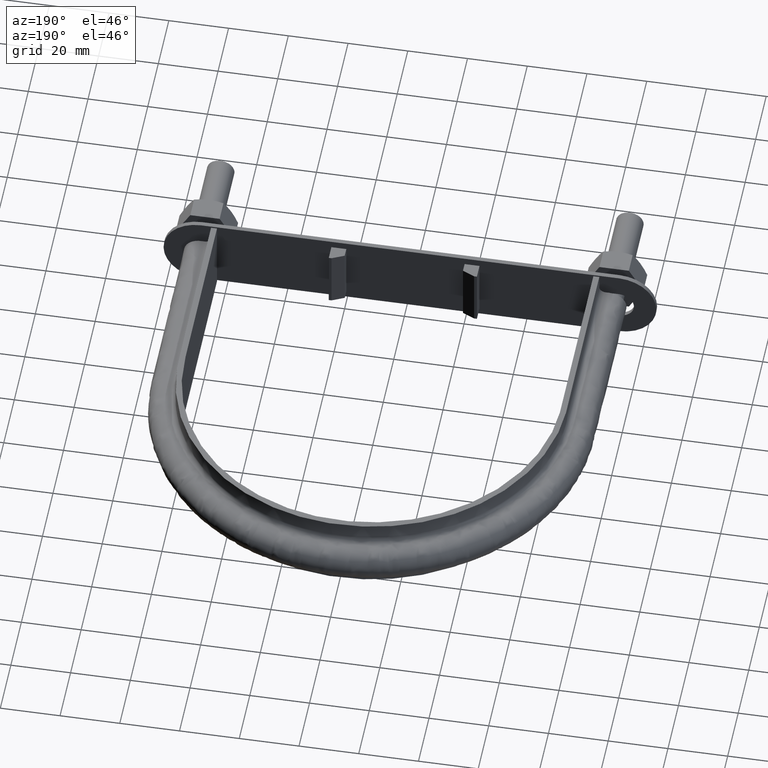
[diagram: clean part render]
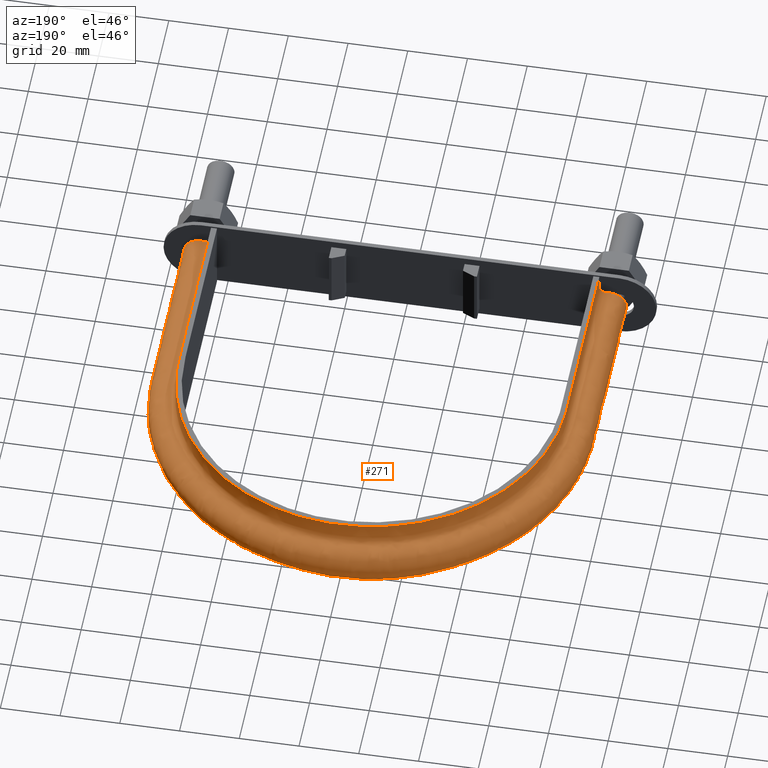
[diagram: same view with one face highlighted and labeled with its STEP entity id]
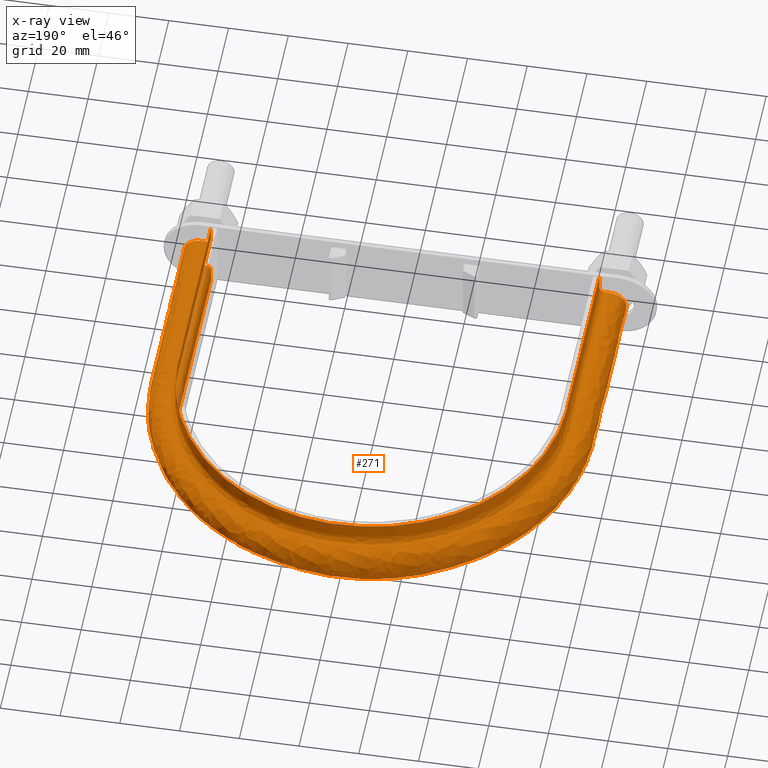
[diagram: x-ray of the same camera — body ghosted, the highlighted face saturated]
A machine part, auxiliary view. The second image highlights one B-rep face of the part: STEP entity #271.
The next image is the same camera in x-ray: the body ghosted, the highlighted face saturated — about 1% of this face is hidden behind the body in this view.
In plain terms, the highlighted face is a freeform B-spline surface patch.
Its self-contained STEP definition (entity closure, byte-faithful):
#271 = ADVANCED_FACE( '', ( #388 ), #389, .F. );
#388 = FACE_OUTER_BOUND( '', #641, .T. );
#389 = B_SPLINE_SURFACE_WITH_KNOTS( '', 3, 3, ( ( #642, #643, #644, #645, #646, #647, #648, #649, #650, #651, #652, #653, #654, #655, #656, #657 ), ( #658, #659, #660, #661, #662, #663, #664, #665, #666, #667, #668, #669, #670, #671, #672, #673 ), ( #674, #675, #676, #677, #678, #679, #680, #681, #682, #683, #684, #685, #686, #687, #688, #689 ), ( #690, #691, #692, #693, #694, #695, #696, #697, #698, #699, #700, #701, #702, #703, #704, #705 ), ( #706, #707, #708, #709, #710, #711, #712, #713, #714, #715, #716, #717, #718, #719, #720, #721 ), ( #722, #723, #724, #725, #726, #727, #728, #729, #730, #731, #732, #733, #734, #735, #736, #737 ), ( #738, #739, #740, #741, #742, #743, #744, #745, #746, #747, #748, #749, #750, #751, #752, #753 ), ( #754, #755, #756, #757, #758, #759, #760, #761, #762, #763, #764, #765, #766, #767, #768, #769 ), ( #770, #771, #772, #773, #774, #775, #776, #777, #778, #779, #780, #781, #782, #783, #784, #785 ), ( #786, #787, #788, #789, #790, #791, #792, #793, #794, #795, #796, #797, #798, #799, #800, #801 ), ( #802, #803, #804, #805, #806, #807, #808, #809, #810, #811, #812, #813, #814, #815, #816, #817 ), ( #818, #819, #820, #821, #822, #823, #824, #825, #826, #827, #828, #829, #830, #831, #832, #833 ), ( #834, #835, #836, #837, #838, #839, #840, #841, #842, #843, #844, #845, #846, #847, #848, #849 ), ( #850, #851, #852, #853, #854, #855, #856, #857, #858, #859, #860, #861, #862, #863, #864, #865 ), ( #866, #867, #868, #869, #870, #871, #872, #873, #874, #875, #876, #877, #878, #879, #880, #881 ), ( #882, #883, #884, #885, #886, #887, #888, #889, #890, #891, #892, #893, #894, #895, #896, #897 ), ( #898, #899, #900, #901, #902, #903, #904, #905, #906, #907, #908, #909, #910, #911, #912, #913 ), ( #914, #915, #916, #917, #918, #919, #920, #921, #922, #923, #924, #925, #926, #927, #928, #929 ), ( #930, #931, #932, #933, #934, #935, #936, #937, #938, #939, #940, #941, #942, #943, #944, #945 ), ( #946, #947, #948, #949, #950, #951, #952, #953, #954, #955, #956, #957, #958, #959, #960, #961 ), ( #962, #963, #964, #965, #966, #967, #968, #969, #970, #971, #972, #973, #974, #975, #976, #977 ), ( #978, #979, #980, #981, #982, #983, #984, #985, #986, #987, #988, #989, #990, #991, #992, #993 ), ( #994, #995, #996, #997, #998, #999, #1000, #1001, #1002, #1003, #1004, #1005, #1006, #1007, #1008, #1009 ), ( #1010, #1011, #1012, #1013, #1014, #1015, #1016, #1017, #1018, #1019, #1020, #1021, #1022, #1023, #1024, #1025 ), ( #1026, #1027, #1028, #1029, #1030, #1031, #1032, #1033, #1034, #1035, #1036, #1037, #1038, #1039, #1040, #1041 ), ( #1042, #1043, #1044, #1045, #1046, #1047, #1048, #1049, #1050, #1051, #1052, #1053, #1054, #1055, #1056, #1057 ), ( #1058, #1059, #1060, #1061, #1062, #1063, #1064, #1065, #1066, #1067, #1068, #1069, #1070, #1071, #1072, #1073 ), ( #1074, #1075, #1076, #1077, #1078, #1079, #1080, #1081, #1082, #1083, #1084, #1085, #1086, #1087, #1088, #1089 ), ( #1090, #1091, #1092, #1093, #1094, #1095, #1096, #1097, #1098, #1099, #1100, #1101, #1102, #1103, #1104, #1105 ), ( #1106, #1107, #1108, #1109, #1110, #1111, #1112, #1113, #1114, #1115, #1116, #1117, #1118, #1119, #1120, #1121 ), ( #1122, #1123, #1124, #1125, #1126, #1127, #1128, #1129, #1130, #1131, #1132, #1133, #1134, #1135, #1136, #1137 ) ), .UNSPECIFIED., .F., .F., .F., ( 4, 3, 1, 1, 1, 3, 3, 1, 1, 1, 3, 3, 1, 1, 1, 3, 4 ), ( 4, 3, 1, 1, 1, 1, 1, 1, 3, 4 ), ( 0.105263157894737, 0.157894736842105, 0.210526315789474, 0.263157894736842, 0.315789473684211, 0.368421052631579, 0.421052631578947, 0.473684210526316, 0.526315789473684, 0.578947368421053, 0.631578947368421, 0.684210526315789, 0.736842105263158, 0.789473684210526, 0.842105263157895, 0.894736842105263, 0.947368421052632 ), ( 0.000000000000000, 1.00000000000000, 2.00000000000000, 3.00000000000000, 4.00000000000000, 5.00000000000000, 6.00000000000000, 7.00000000000000, 8.00000000000000, 9.00000000000000 ), .UNSPECIFIED. );
#641 = EDGE_LOOP( '', ( #1581, #1582, #1583, #1584 ) );
#642 = CARTESIAN_POINT( '', ( -65.0000000000000, 34.4100000000000, 12.5000000000000 ) );
#643 = CARTESIAN_POINT( '', ( -65.0000000000000, 56.2766666666667, 12.5000000000000 ) );
#644 = CARTESIAN_POINT( '', ( -65.0000000000000, 78.1433333333334, 12.5000000000000 ) );
#645 = CARTESIAN_POINT( '', ( -65.0000000000000, 100.010000000000, 12.5000000000000 ) );
#646 = CARTESIAN_POINT( '', ( -65.0000000000000, 109.722642194517, 12.5000000000000 ) );
#647 = CARTESIAN_POINT( '', ( -60.5621560385809, 129.179409743994, 12.5000000000000 ) );
#648 = CARTESIAN_POINT( '', ( -41.9103123469103, 152.562760860094, 12.5000000000000 ) );
#649 = CARTESIAN_POINT( '', ( -14.9576172986841, 165.543824978164, 12.5000000000000 ) );
#650 = CARTESIAN_POINT( '', ( 14.9576172986842, 165.543824978164, 12.5000000000000 ) );
#651 = CARTESIAN_POINT( '', ( 41.9103123469103, 152.562760860094, 12.5000000000000 ) );
#652 = CARTESIAN_POINT( '', ( 60.5621560385810, 129.179409743994, 12.5000000000000 ) );
#653 = CARTESIAN_POINT( '', ( 65.0000000000000, 109.722642194517, 12.5000000000000 ) );
#654 = CARTESIAN_POINT( '', ( 65.0000000000001, 100.010000000000, 12.5000000000000 ) );
#655 = CARTESIAN_POINT( '', ( 65.0000000000000, 78.1433333333333, 12.5000000000000 ) );
#656 = CARTESIAN_POINT( '', ( 65.0000000000000, 56.2766666666666, 12.5000000000000 ) );
#657 = CARTESIAN_POINT( '', ( 65.0000000000000, 34.4100000000000, 12.5000000000000 ) );
#658 = CARTESIAN_POINT( '', ( -65.0000000000000, 34.4100000000000, 10.8666666666667 ) );
#659 = CARTESIAN_POINT( '', ( -65.0000000000000, 56.2766666666667, 10.8666666666667 ) );
#660 = CARTESIAN_POINT( '', ( -65.0000000000000, 78.1433333333334, 10.8666666666667 ) );
#661 = CARTESIAN_POINT( '', ( -65.0000000000000, 100.010000000000, 10.8666666666667 ) );
#662 = CARTESIAN_POINT( '', ( -65.0000000000000, 109.722642194517, 10.8666666666667 ) );
#663 = CARTESIAN_POINT( '', ( -60.5621560385809, 129.179409743994, 10.8666666666667 ) );
#664 = CARTESIAN_POINT( '', ( -41.9103123469103, 152.562760860094, 10.8666666666667 ) );
#665 = CARTESIAN_POINT( '', ( -14.9576172986841, 165.543824978164, 10.8666666666667 ) );
#666 = CARTESIAN_POINT( '', ( 14.9576172986842, 165.543824978164, 10.8666666666667 ) );
#667 = CARTESIAN_POINT( '', ( 41.9103123469103, 152.562760860094, 10.8666666666667 ) );
#668 = CARTESIAN_POINT( '', ( 60.5621560385810, 129.179409743994, 10.8666666666667 ) );
#669 = CARTESIAN_POINT( '', ( 65.0000000000000, 109.722642194517, 10.8666666666667 ) );
#670 = CARTESIAN_POINT( '', ( 65.0000000000001, 100.010000000000, 10.8666666666667 ) );
#671 = CARTESIAN_POINT( '', ( 65.0000000000000, 78.1433333333333, 10.8666666666667 ) );
#672 = CARTESIAN_POINT( '', ( 65.0000000000000, 56.2766666666666, 10.8666666666667 ) );
#673 = CARTESIAN_POINT( '', ( 65.0000000000000, 34.4100000000000, 10.8666666666667 ) );
#674 = CARTESIAN_POINT( '', ( -65.0000000000000, 34.4100000000000, 9.23333333333333 ) );
#675 = CARTESIAN_POINT( '', ( -65.0000000000000, 56.2766666666667, 9.23333333333333 ) );
#676 = CARTESIAN_POINT( '', ( -65.0000000000000, 78.1433333333334, 9.23333333333333 ) );
#677 = CARTESIAN_POINT( '', ( -65.0000000000000, 100.010000000000, 9.23333333333333 ) );
#678 = CARTESIAN_POINT( '', ( -65.0000000000000, 109.722642194517, 9.23333333333333 ) );
#679 = CARTESIAN_POINT( '', ( -60.5621560385809, 129.179409743994, 9.23333333333333 ) );
#680 = CARTESIAN_POINT( '', ( -41.9103123469103, 152.562760860094, 9.23333333333332 ) );
#681 = CARTESIAN_POINT( '', ( -14.9576172986841, 165.543824978164, 9.23333333333334 ) );
#682 = CARTESIAN_POINT( '', ( 14.9576172986842, 165.543824978164, 9.23333333333333 ) );
#683 = CARTESIAN_POINT( '', ( 41.9103123469103, 152.562760860094, 9.23333333333332 ) );
#684 = CARTESIAN_POINT( '', ( 60.5621560385810, 129.179409743994, 9.23333333333333 ) );
#685 = CARTESIAN_POINT( '', ( 65.0000000000000, 109.722642194517, 9.23333333333333 ) );
#686 = CARTESIAN_POINT( '', ( 65.0000000000001, 100.010000000000, 9.23333333333333 ) );
#687 = CARTESIAN_POINT( '', ( 65.0000000000000, 78.1433333333333, 9.23333333333333 ) );
#688 = CARTESIAN_POINT( '', ( 65.0000000000000, 56.2766666666666, 9.23333333333333 ) );
#689 = CARTESIAN_POINT( '', ( 65.0000000000000, 34.4100000000000, 9.23333333333333 ) );
#690 = CARTESIAN_POINT( '', ( -65.0000000000000, 34.4100000000000, 7.60000000000000 ) );
#691 = CARTESIAN_POINT( '', ( -65.0000000000000, 56.2766666666667, 7.60000000000000 ) );
#692 = CARTESIAN_POINT( '', ( -65.0000000000000, 78.1433333333334, 7.60000000000000 ) );
#693 = CARTESIAN_POINT( '', ( -65.0000000000000, 100.010000000000, 7.60000000000000 ) );
#694 = CARTESIAN_POINT( '', ( -65.0000000000000, 109.722642194517, 7.60000000000000 ) );
#695 = CARTESIAN_POINT( '', ( -60.5621560385809, 129.179409743994, 7.60000000000000 ) );
#696 = CARTESIAN_POINT( '', ( -41.9103123469103, 152.562760860094, 7.59999999999999 ) );
#697 = CARTESIAN_POINT( '', ( -14.9576172986841, 165.543824978164, 7.60000000000001 ) );
#698 = CARTESIAN_POINT( '', ( 14.9576172986842, 165.543824978164, 7.59999999999999 ) );
#699 = CARTESIAN_POINT( '', ( 41.9103123469103, 152.562760860094, 7.59999999999999 ) );
#700 = CARTESIAN_POINT( '', ( 60.5621560385810, 129.179409743994, 7.59999999999999 ) );
#701 = CARTESIAN_POINT( '', ( 65.0000000000000, 109.722642194517, 7.60000000000000 ) );
#702 = CARTESIAN_POINT( '', ( 65.0000000000001, 100.010000000000, 7.60000000000000 ) );
#703 = CARTESIAN_POINT( '', ( 65.0000000000000, 78.1433333333333, 7.60000000000000 ) );
#704 = CARTESIAN_POINT( '', ( 65.0000000000000, 56.2766666666666, 7.60000000000000 ) );
#705 = CARTESIAN_POINT( '', ( 65.0000000000000, 34.4100000000000, 7.60000000000000 ) );
#706 = CARTESIAN_POINT( '', ( -65.0000000000000, 34.4100000000000, 7.33823584172333 ) );
#707 = CARTESIAN_POINT( '', ( -65.0000000000000, 56.2766666666667, 7.33823584172333 ) );
#708 = CARTESIAN_POINT( '', ( -65.0000000000000, 78.1433333333334, 7.33823584172333 ) );
#709 = CARTESIAN_POINT( '', ( -65.0000000000000, 100.010000000000, 7.33823584172333 ) );
#710 = CARTESIAN_POINT( '', ( -65.0000000000000, 109.722642194517, 7.33823584172333 ) );
#711 = CARTESIAN_POINT( '', ( -60.5621560385809, 129.179409743994, 7.33823584172333 ) );
#712 = CARTESIAN_POINT( '', ( -41.9103123469103, 152.562760860094, 7.33823584172332 ) );
#713 = CARTESIAN_POINT( '', ( -14.9576172986841, 165.543824978164, 7.33823584172334 ) );
#714 = CARTESIAN_POINT( '', ( 14.9576172986842, 165.543824978164, 7.33823584172333 ) );
#715 = CARTESIAN_POINT( '', ( 41.9103123469103, 152.562760860094, 7.33823584172333 ) );
#716 = CARTESIAN_POINT( '', ( 60.5621560385810, 129.179409743994, 7.33823584172333 ) );
#717 = CARTESIAN_POINT( '', ( 65.0000000000000, 109.722642194517, 7.33823584172333 ) );
#718 = CARTESIAN_POINT( '', ( 65.0000000000001, 100.010000000000, 7.33823584172333 ) );
#719 = CARTESIAN_POINT( '', ( 65.0000000000000, 78.1433333333333, 7.33823584172333 ) );
#720 = CARTESIAN_POINT( '', ( 65.0000000000000, 56.2766666666666, 7.33823584172333 ) );
#721 = CARTESIAN_POINT( '', ( 65.0000000000000, 34.4100000000000, 7.33823584172333 ) );
#722 = CARTESIAN_POINT( '', ( -65.1041362568359, 34.4100000000000, 6.81470752517001 ) );
#723 = CARTESIAN_POINT( '', ( -65.1041362568359, 56.2766666666667, 6.81470752517001 ) );
#724 = CARTESIAN_POINT( '', ( -65.1041362568359, 78.1433333333334, 6.81470752517001 ) );
#725 = CARTESIAN_POINT( '', ( -65.1041362568359, 100.010000000000, 6.81470752517001 ) );
#726 = CARTESIAN_POINT( '', ( -65.1041362568359, 109.738487808563, 6.81470752517001 ) );
#727 = CARTESIAN_POINT( '', ( -60.6591824422081, 129.226009860854, 6.81470752517001 ) );
#728 = CARTESIAN_POINT( '', ( -41.9774567015354, 152.646990200976, 6.81470752517000 ) );
#729 = CARTESIAN_POINT( '', ( -14.9815808414021, 165.648809522138, 6.81470752517001 ) );
#730 = CARTESIAN_POINT( '', ( 14.9815808414021, 165.648809522138, 6.81470752517000 ) );
#731 = CARTESIAN_POINT( '', ( 41.9774567015354, 152.646990200976, 6.81470752517000 ) );
#732 = CARTESIAN_POINT( '', ( 60.6591824422082, 129.226009860854, 6.81470752517001 ) );
#733 = CARTESIAN_POINT( '', ( 65.1041362568359, 109.738487808563, 6.81470752517001 ) );
#734 = CARTESIAN_POINT( '', ( 65.1041362568360, 100.010000000000, 6.81470752517001 ) );
#735 = CARTESIAN_POINT( '', ( 65.1041362568359, 78.1433333333333, 6.81470752517001 ) );
#736 = CARTESIAN_POINT( '', ( 65.1041362568359, 56.2766666666666, 6.81470752517001 ) );
#737 = CARTESIAN_POINT( '', ( 65.1041362568359, 34.4100000000000, 6.81470752517001 ) );
#738 = CARTESIAN_POINT( '', ( -65.5489687109389, 34.4100000000000, 6.14896871093887 ) );
#739 = CARTESIAN_POINT( '', ( -65.5489687109389, 56.2766666666667, 6.14896871093887 ) );
#740 = CARTESIAN_POINT( '', ( -65.5489687109389, 78.1433333333334, 6.14896871093887 ) );
#741 = CARTESIAN_POINT( '', ( -65.5489687109389, 100.010000000000, 6.14896871093887 ) );
#742 = CARTESIAN_POINT( '', ( -65.5489687109389, 109.806174545127, 6.14896871093887 ) );
#743 = CARTESIAN_POINT( '', ( -61.0736441729221, 129.425068718682, 6.14896871093887 ) );
#744 = CARTESIAN_POINT( '', ( -42.2642731183584, 153.006787504534, 6.14896871093886 ) );
#745 = CARTESIAN_POINT( '', ( -15.0839444354099, 166.097265552326, 6.14896871093888 ) );
#746 = CARTESIAN_POINT( '', ( 15.0839444354099, 166.097265552326, 6.14896871093887 ) );
#747 = CARTESIAN_POINT( '', ( 42.2642731183585, 153.006787504534, 6.14896871093887 ) );
#748 = CARTESIAN_POINT( '', ( 61.0736441729222, 129.425068718682, 6.14896871093887 ) );
#749 = CARTESIAN_POINT( '', ( 65.5489687109389, 109.806174545127, 6.14896871093887 ) );
#750 = CARTESIAN_POINT( '', ( 65.5489687109389, 100.010000000000, 6.14896871093887 ) );
#751 = CARTESIAN_POINT( '', ( 65.5489687109389, 78.1433333333333, 6.14896871093887 ) );
#752 = CARTESIAN_POINT( '', ( 65.5489687109389, 56.2766666666666, 6.14896871093887 ) );
#753 = CARTESIAN_POINT( '', ( 65.5489687109389, 34.4100000000000, 6.14896871093887 ) );
#754 = CARTESIAN_POINT( '', ( -66.2147075251700, 34.4100000000000, 5.70413625683590 ) );
#755 = CARTESIAN_POINT( '', ( -66.2147075251700, 56.2766666666667, 5.70413625683590 ) );
#756 = CARTESIAN_POINT( '', ( -66.2147075251700, 78.1433333333334, 5.70413625683590 ) );
#757 = CARTESIAN_POINT( '', ( -66.2147075251700, 100.010000000000, 5.70413625683590 ) );
#758 = CARTESIAN_POINT( '', ( -66.2147075251700, 109.907474905125, 5.70413625683590 ) );
#759 = CARTESIAN_POINT( '', ( -61.6939299875130, 129.722981352417, 5.70413625683591 ) );
#760 = CARTESIAN_POINT( '', ( -42.6935242206028, 153.545262222430, 5.70413625683590 ) );
#761 = CARTESIAN_POINT( '', ( -15.2371423800891, 166.768427431407, 5.70413625683591 ) );
#762 = CARTESIAN_POINT( '', ( 15.2371423800891, 166.768427431407, 5.70413625683590 ) );
#763 = CARTESIAN_POINT( '', ( 42.6935242206029, 153.545262222430, 5.70413625683590 ) );
#764 = CARTESIAN_POINT( '', ( 61.6939299875130, 129.722981352417, 5.70413625683590 ) );
#765 = CARTESIAN_POINT( '', ( 66.2147075251701, 109.907474905125, 5.70413625683590 ) );
#766 = CARTESIAN_POINT( '', ( 66.2147075251701, 100.010000000000, 5.70413625683590 ) );
#767 = CARTESIAN_POINT( '', ( 66.2147075251700, 78.1433333333333, 5.70413625683590 ) );
#768 = CARTESIAN_POINT( '', ( 66.2147075251700, 56.2766666666666, 5.70413625683590 ) );
#769 = CARTESIAN_POINT( '', ( 66.2147075251700, 34.4100000000000, 5.70413625683590 ) );
#770 = CARTESIAN_POINT( '', ( -66.7382358417234, 34.4100000000000, 5.59999999999999 ) );
#771 = CARTESIAN_POINT( '', ( -66.7382358417234, 56.2766666666667, 5.59999999999999 ) );
#772 = CARTESIAN_POINT( '', ( -66.7382358417233, 78.1433333333334, 5.59999999999999 ) );
#773 = CARTESIAN_POINT( '', ( -66.7382358417233, 100.010000000000, 5.59999999999999 ) );
#774 = CARTESIAN_POINT( '', ( -66.7382358417233, 109.987136186400, 5.59999999999999 ) );
#775 = CARTESIAN_POINT( '', ( -62.1817146582471, 129.957255960244, 5.60000000000000 ) );
#776 = CARTESIAN_POINT( '', ( -43.0310816862829, 153.968711714244, 5.59999999999999 ) );
#777 = CARTESIAN_POINT( '', ( -15.3576152447664, 167.296220375395, 5.60000000000000 ) );
#778 = CARTESIAN_POINT( '', ( 15.3576152447665, 167.296220375395, 5.59999999999999 ) );
#779 = CARTESIAN_POINT( '', ( 43.0310816862829, 153.968711714244, 5.59999999999999 ) );
#780 = CARTESIAN_POINT( '', ( 62.1817146582472, 129.957255960244, 5.59999999999999 ) );
#781 = CARTESIAN_POINT( '', ( 66.7382358417234, 109.987136186400, 5.59999999999999 ) );
#782 = CARTESIAN_POINT( '', ( 66.7382358417234, 100.010000000000, 5.59999999999999 ) );
#783 = CARTESIAN_POINT( '', ( 66.7382358417234, 78.1433333333333, 5.59999999999999 ) );
#784 = CARTESIAN_POINT( '', ( 66.7382358417234, 56.2766666666666, 5.59999999999999 ) );
#785 = CARTESIAN_POINT( '', ( 66.7382358417234, 34.4100000000000, 5.59999999999999 ) );
#786 = CARTESIAN_POINT( '', ( -67.0000000000000, 34.4100000000000, 5.59999999999999 ) );
#787 = CARTESIAN_POINT( '', ( -67.0000000000000, 56.2766666666667, 5.59999999999999 ) );
#788 = CARTESIAN_POINT( '', ( -67.0000000000000, 78.1433333333334, 5.59999999999999 ) );
#789 = CARTESIAN_POINT( '', ( -67.0000000000000, 100.010000000000, 5.59999999999999 ) );
#790 = CARTESIAN_POINT( '', ( -67.0000000000000, 110.026966827037, 5.59999999999999 ) );
#791 = CARTESIAN_POINT( '', ( -62.4256069936142, 130.074393264158, 5.60000000000000 ) );
#792 = CARTESIAN_POINT( '', ( -43.1998604191229, 154.180436460150, 5.59999999999999 ) );
#793 = CARTESIAN_POINT( '', ( -15.4178516771051, 167.560116847389, 5.60000000000000 ) );
#794 = CARTESIAN_POINT( '', ( 15.4178516771052, 167.560116847389, 5.59999999999999 ) );
#795 = CARTESIAN_POINT( '', ( 43.1998604191230, 154.180436460150, 5.59999999999999 ) );
#796 = CARTESIAN_POINT( '', ( 62.4256069936142, 130.074393264158, 5.59999999999999 ) );
#797 = CARTESIAN_POINT( '', ( 67.0000000000000, 110.026966827037, 5.59999999999999 ) );
#798 = CARTESIAN_POINT( '', ( 67.0000000000001, 100.010000000000, 5.59999999999999 ) );
#799 = CARTESIAN_POINT( '', ( 67.0000000000000, 78.1433333333333, 5.59999999999999 ) );
#800 = CARTESIAN_POINT( '', ( 67.0000000000000, 56.2766666666666, 5.59999999999999 ) );
#801 = CARTESIAN_POINT( '', ( 67.0000000000000, 34.4100000000000, 5.59999999999999 ) );
#802 = CARTESIAN_POINT( '', ( -67.5000000000000, 34.4100000000000, 5.60000000000000 ) );
#803 = CARTESIAN_POINT( '', ( -67.5000000000000, 56.2766666666667, 5.60000000000000 ) );
#804 = CARTESIAN_POINT( '', ( -67.5000000000000, 78.1433333333334, 5.60000000000000 ) );
#805 = CARTESIAN_POINT( '', ( -67.5000000000000, 100.010000000000, 5.60000000000000 ) );
#806 = CARTESIAN_POINT( '', ( -67.5000000000000, 110.103047985167, 5.60000000000000 ) );
#807 = CARTESIAN_POINT( '', ( -62.8914697323725, 130.298139144199, 5.60000000000000 ) );
#808 = CARTESIAN_POINT( '', ( -43.5222474371760, 154.584855360165, 5.60000000000000 ) );
#809 = CARTESIAN_POINT( '', ( -15.5329102717104, 168.064189814695, 5.60000000000001 ) );
#810 = CARTESIAN_POINT( '', ( 15.5329102717105, 168.064189814695, 5.60000000000000 ) );
#811 = CARTESIAN_POINT( '', ( 43.5222474371761, 154.584855360165, 5.60000000000000 ) );
#812 = CARTESIAN_POINT( '', ( 62.8914697323725, 130.298139144199, 5.60000000000000 ) );
#813 = CARTESIAN_POINT( '', ( 67.5000000000000, 110.103047985167, 5.60000000000000 ) );
#814 = CARTESIAN_POINT( '', ( 67.5000000000000, 100.010000000000, 5.60000000000000 ) );
#815 = CARTESIAN_POINT( '', ( 67.5000000000000, 78.1433333333333, 5.60000000000000 ) );
#816 = CARTESIAN_POINT( '', ( 67.5000000000000, 56.2766666666666, 5.60000000000000 ) );
#817 = CARTESIAN_POINT( '', ( 67.5000000000000, 34.4100000000000, 5.60000000000000 ) );
#818 = CARTESIAN_POINT( '', ( -68.0000000000000, 34.4100000000000, 5.60000000000000 ) );
#819 = CARTESIAN_POINT( '', ( -68.0000000000000, 56.2766666666667, 5.60000000000000 ) );
#820 = CARTESIAN_POINT( '', ( -68.0000000000000, 78.1433333333334, 5.60000000000000 ) );
#821 = CARTESIAN_POINT( '', ( -68.0000000000000, 100.010000000000, 5.60000000000000 ) );
#822 = CARTESIAN_POINT( '', ( -68.0000000000000, 110.179129143297, 5.60000000000000 ) );
#823 = CARTESIAN_POINT( '', ( -63.3573324711308, 130.521885024240, 5.60000000000000 ) );
#824 = CARTESIAN_POINT( '', ( -43.8446344552292, 154.989274260179, 5.60000000000000 ) );
#825 = CARTESIAN_POINT( '', ( -15.6479688663157, 168.568262782001, 5.60000000000001 ) );
#826 = CARTESIAN_POINT( '', ( 15.6479688663157, 168.568262782001, 5.60000000000000 ) );
#827 = CARTESIAN_POINT( '', ( 43.8446344552293, 154.989274260179, 5.60000000000000 ) );
#828 = CARTESIAN_POINT( '', ( 63.3573324711308, 130.521885024240, 5.60000000000000 ) );
#829 = CARTESIAN_POINT( '', ( 68.0000000000000, 110.179129143297, 5.60000000000000 ) );
#830 = CARTESIAN_POINT( '', ( 68.0000000000000, 100.010000000000, 5.60000000000000 ) );
#831 = CARTESIAN_POINT( '', ( 68.0000000000000, 78.1433333333333, 5.60000000000000 ) );
#832 = CARTESIAN_POINT( '', ( 68.0000000000000, 56.2766666666666, 5.60000000000000 ) );
#833 = CARTESIAN_POINT( '', ( 68.0000000000000, 34.4100000000000, 5.60000000000000 ) );
#834 = CARTESIAN_POINT( '', ( -68.5000000000000, 34.4100000000000, 5.60000000000000 ) );
#835 = CARTESIAN_POINT( '', ( -68.5000000000000, 56.2766666666667, 5.60000000000000 ) );
#836 = CARTESIAN_POINT( '', ( -68.5000000000000, 78.1433333333334, 5.60000000000000 ) );
#837 = CARTESIAN_POINT( '', ( -68.5000000000000, 100.010000000000, 5.60000000000000 ) );
#838 = CARTESIAN_POINT( '', ( -68.5000000000000, 110.255210301427, 5.60000000000000 ) );
#839 = CARTESIAN_POINT( '', ( -63.8231952098891, 130.745630904281, 5.60000000000000 ) );
#840 = CARTESIAN_POINT( '', ( -44.1670214732823, 155.393693160193, 5.60000000000000 ) );
#841 = CARTESIAN_POINT( '', ( -15.7630274609209, 169.072335749307, 5.60000000000001 ) );
#842 = CARTESIAN_POINT( '', ( 15.7630274609210, 169.072335749307, 5.60000000000000 ) );
#843 = CARTESIAN_POINT( '', ( 44.1670214732824, 155.393693160193, 5.60000000000000 ) );
#844 = CARTESIAN_POINT( '', ( 63.8231952098892, 130.745630904281, 5.60000000000000 ) );
#845 = CARTESIAN_POINT( '', ( 68.5000000000000, 110.255210301427, 5.60000000000000 ) );
#846 = CARTESIAN_POINT( '', ( 68.5000000000000, 100.010000000000, 5.60000000000000 ) );
#847 = CARTESIAN_POINT( '', ( 68.5000000000000, 78.1433333333333, 5.60000000000000 ) );
#848 = CARTESIAN_POINT( '', ( 68.5000000000000, 56.2766666666666, 5.60000000000000 ) );
#849 = CARTESIAN_POINT( '', ( 68.5000000000000, 34.4100000000000, 5.60000000000000 ) );
#850 = CARTESIAN_POINT( '', ( -69.9627416997969, 34.4100000000000, 5.60000000000000 ) );
#851 = CARTESIAN_POINT( '', ( -69.9627416997969, 56.2766666666667, 5.60000000000000 ) );
#852 = CARTESIAN_POINT( '', ( -69.9627416997969, 78.1433333333334, 5.60000000000000 ) );
#853 = CARTESIAN_POINT( '', ( -69.9627416997969, 100.010000000000, 5.60000000000000 ) );
#854 = CARTESIAN_POINT( '', ( -69.9627416997969, 110.477784466558, 5.60000000000000 ) );
#855 = CARTESIAN_POINT( '', ( -65.1860689186159, 131.400195762068, 5.60000000000000 ) );
#856 = CARTESIAN_POINT( '', ( -45.1101593428414, 156.576813938667, 5.59999999999999 ) );
#857 = CARTESIAN_POINT( '', ( -16.0996294694192, 170.546992847346, 5.60000000000001 ) );
#858 = CARTESIAN_POINT( '', ( 16.0996294694193, 170.546992847346, 5.60000000000000 ) );
#859 = CARTESIAN_POINT( '', ( 45.1101593428415, 156.576813938667, 5.59999999999999 ) );
#860 = CARTESIAN_POINT( '', ( 65.1860689186160, 131.400195762068, 5.59999999999999 ) );
#861 = CARTESIAN_POINT( '', ( 69.9627416997970, 110.477784466558, 5.60000000000000 ) );
#862 = CARTESIAN_POINT( '', ( 69.9627416997970, 100.010000000000, 5.60000000000000 ) );
#863 = CARTESIAN_POINT( '', ( 69.9627416997970, 78.1433333333333, 5.60000000000000 ) );
#864 = CARTESIAN_POINT( '', ( 69.9627416997969, 56.2766666666666, 5.60000000000000 ) );
#865 = CARTESIAN_POINT( '', ( 69.9627416997969, 34.4100000000000, 5.60000000000000 ) );
#866 = CARTESIAN_POINT( '', ( -72.8882250993909, 34.4100000000000, 4.38822509939086 ) );
#867 = CARTESIAN_POINT( '', ( -72.8882250993909, 56.2766666666667, 4.38822509939086 ) );
#868 = CARTESIAN_POINT( '', ( -72.8882250993908, 78.1433333333334, 4.38822509939086 ) );
#869 = CARTESIAN_POINT( '', ( -72.8882250993908, 100.010000000000, 4.38822509939086 ) );
#870 = CARTESIAN_POINT( '', ( -72.8882250993908, 110.922932796821, 4.38822509939086 ) );
#871 = CARTESIAN_POINT( '', ( -67.9118163360695, 132.709325477643, 4.38822509939086 ) );
#872 = CARTESIAN_POINT( '', ( -46.9964350819596, 158.943055495614, 4.38822509939085 ) );
#873 = CARTESIAN_POINT( '', ( -16.7728334864158, 173.496307043423, 4.38822509939086 ) );
#874 = CARTESIAN_POINT( '', ( 16.7728334864159, 173.496307043423, 4.38822509939086 ) );
#875 = CARTESIAN_POINT( '', ( 46.9964350819597, 158.943055495614, 4.38822509939086 ) );
#876 = CARTESIAN_POINT( '', ( 67.9118163360695, 132.709325477643, 4.38822509939086 ) );
#877 = CARTESIAN_POINT( '', ( 72.8882250993909, 110.922932796821, 4.38822509939086 ) );
#878 = CARTESIAN_POINT( '', ( 72.8882250993909, 100.010000000000, 4.38822509939086 ) );
#879 = CARTESIAN_POINT( '', ( 72.8882250993909, 78.1433333333333, 4.38822509939086 ) );
#880 = CARTESIAN_POINT( '', ( 72.8882250993909, 56.2766666666666, 4.38822509939086 ) );
#881 = CARTESIAN_POINT( '', ( 72.8882250993909, 34.4100000000000, 4.38822509939086 ) );
#882 = CARTESIAN_POINT( '', ( -74.7058874503046, 34.4100000000000, 1.38308419891421E-015 ) );
#883 = CARTESIAN_POINT( '', ( -74.7058874503046, 56.2766666666667, 1.38308419891421E-015 ) );
#884 = CARTESIAN_POINT( '', ( -74.7058874503045, 78.1433333333334, 1.38308419891421E-015 ) );
#885 = CARTESIAN_POINT( '', ( -74.7058874503045, 100.010000000000, 1.38308419891421E-015 ) );
#886 = CARTESIAN_POINT( '', ( -74.7058874503046, 111.199512510315, 1.38308419891421E-015 ) );
#887 = CARTESIAN_POINT( '', ( -69.6053786579386, 133.522714402288, 1.38308419891421E-015 ) );
#888 = CARTESIAN_POINT( '', ( -48.1684165722367, 160.413249512722, 1.38308419891421E-015 ) );
#889 = CARTESIAN_POINT( '', ( -17.1911088375419, 175.328775952995, 1.38308419891421E-015 ) );
#890 = CARTESIAN_POINT( '', ( 17.1911088375420, 175.328775952995, 1.38308419891421E-015 ) );
#891 = CARTESIAN_POINT( '', ( 48.1684165722368, 160.413249512721, 1.38308419891421E-015 ) );
#892 = CARTESIAN_POINT( '', ( 69.6053786579386, 133.522714402288, 1.38308419891421E-015 ) );
#893 = CARTESIAN_POINT( '', ( 74.7058874503046, 111.199512510315, 1.38308419891421E-015 ) );
#894 = CARTESIAN_POINT( '', ( 74.7058874503046, 100.010000000000, 1.38308419891421E-015 ) );
#895 = CARTESIAN_POINT( '', ( 74.7058874503046, 78.1433333333333, 1.38308419891421E-015 ) );
#896 = CARTESIAN_POINT( '', ( 74.7058874503046, 56.2766666666666, 1.38308419891421E-015 ) );
#897 = CARTESIAN_POINT( '', ( 74.7058874503046, 34.4100000000000, 1.38308419891421E-015 ) );
#898 = CARTESIAN_POINT( '', ( -72.8882250993909, 34.4100000000000, -4.38822509939086 ) );
#899 = CARTESIAN_POINT( '', ( -72.8882250993909, 56.2766666666667, -4.38822509939086 ) );
#900 = CARTESIAN_POINT( '', ( -72.8882250993908, 78.1433333333334, -4.38822509939086 ) );
#901 = CARTESIAN_POINT( '', ( -72.8882250993908, 100.010000000000, -4.38822509939086 ) );
#902 = CARTESIAN_POINT( '', ( -72.8882250993908, 110.922932796821, -4.38822509939086 ) );
#903 = CARTESIAN_POINT( '', ( -67.9118163360695, 132.709325477643, -4.38822509939086 ) );
#904 = CARTESIAN_POINT( '', ( -46.9964350819596, 158.943055495614, -4.38822509939085 ) );
#905 = CARTESIAN_POINT( '', ( -16.7728334864158, 173.496307043423, -4.38822509939086 ) );
#906 = CARTESIAN_POINT( '', ( 16.7728334864159, 173.496307043423, -4.38822509939086 ) );
#907 = CARTESIAN_POINT( '', ( 46.9964350819597, 158.943055495614, -4.38822509939085 ) );
#908 = CARTESIAN_POINT( '', ( 67.9118163360695, 132.709325477643, -4.38822509939086 ) );
#909 = CARTESIAN_POINT( '', ( 72.8882250993909, 110.922932796821, -4.38822509939086 ) );
#910 = CARTESIAN_POINT( '', ( 72.8882250993909, 100.010000000000, -4.38822509939086 ) );
#911 = CARTESIAN_POINT( '', ( 72.8882250993909, 78.1433333333333, -4.38822509939086 ) );
#912 = CARTESIAN_POINT( '', ( 72.8882250993909, 56.2766666666666, -4.38822509939086 ) );
#913 = CARTESIAN_POINT( '', ( 72.8882250993909, 34.4100000000000, -4.38822509939086 ) );
#914 = CARTESIAN_POINT( '', ( -69.9627416997970, 34.4100000000000, -5.59999999999999 ) );
#915 = CARTESIAN_POINT( '', ( -69.9627416997970, 56.2766666666667, -5.59999999999999 ) );
#916 = CARTESIAN_POINT( '', ( -69.9627416997969, 78.1433333333334, -5.59999999999999 ) );
#917 = CARTESIAN_POINT( '', ( -69.9627416997969, 100.010000000000, -5.59999999999999 ) );
#918 = CARTESIAN_POINT( '', ( -69.9627416997969, 110.477784466558, -5.59999999999999 ) );
#919 = CARTESIAN_POINT( '', ( -65.1860689186159, 131.400195762068, -5.60000000000000 ) );
#920 = CARTESIAN_POINT( '', ( -45.1101593428414, 156.576813938667, -5.59999999999999 ) );
#921 = CARTESIAN_POINT( '', ( -16.0996294694192, 170.546992847346, -5.60000000000000 ) );
#922 = CARTESIAN_POINT( '', ( 16.0996294694193, 170.546992847346, -5.59999999999999 ) );
#923 = CARTESIAN_POINT( '', ( 45.1101593428415, 156.576813938667, -5.59999999999999 ) );
#924 = CARTESIAN_POINT( '', ( 65.1860689186160, 131.400195762068, -5.59999999999999 ) );
#925 = CARTESIAN_POINT( '', ( 69.9627416997970, 110.477784466558, -5.59999999999999 ) );
#926 = CARTESIAN_POINT( '', ( 69.9627416997970, 100.010000000000, -5.59999999999999 ) );
#927 = CARTESIAN_POINT( '', ( 69.9627416997970, 78.1433333333333, -5.59999999999999 ) );
#928 = CARTESIAN_POINT( '', ( 69.9627416997970, 56.2766666666666, -5.59999999999999 ) );
#929 = CARTESIAN_POINT( '', ( 69.9627416997970, 34.4100000000000, -5.59999999999999 ) );
#930 = CARTESIAN_POINT( '', ( -68.5000000000000, 34.4100000000000, -5.59999999999999 ) );
#931 = CARTESIAN_POINT( '', ( -68.5000000000000, 56.2766666666667, -5.59999999999999 ) );
#932 = CARTESIAN_POINT( '', ( -68.5000000000000, 78.1433333333334, -5.59999999999999 ) );
#933 = CARTESIAN_POINT( '', ( -68.5000000000000, 100.010000000000, -5.59999999999999 ) );
#934 = CARTESIAN_POINT( '', ( -68.5000000000000, 110.255210301427, -5.59999999999999 ) );
#935 = CARTESIAN_POINT( '', ( -63.8231952098891, 130.745630904281, -5.59999999999999 ) );
#936 = CARTESIAN_POINT( '', ( -44.1670214732823, 155.393693160193, -5.59999999999998 ) );
#937 = CARTESIAN_POINT( '', ( -15.7630274609209, 169.072335749307, -5.60000000000000 ) );
#938 = CARTESIAN_POINT( '', ( 15.7630274609210, 169.072335749307, -5.59999999999999 ) );
#939 = CARTESIAN_POINT( '', ( 44.1670214732824, 155.393693160193, -5.59999999999999 ) );
#940 = CARTESIAN_POINT( '', ( 63.8231952098892, 130.745630904281, -5.59999999999999 ) );
#941 = CARTESIAN_POINT( '', ( 68.5000000000000, 110.255210301427, -5.59999999999999 ) );
#942 = CARTESIAN_POINT( '', ( 68.5000000000000, 100.010000000000, -5.59999999999999 ) );
#943 = CARTESIAN_POINT( '', ( 68.5000000000000, 78.1433333333333, -5.59999999999999 ) );
#944 = CARTESIAN_POINT( '', ( 68.5000000000000, 56.2766666666666, -5.59999999999999 ) );
#945 = CARTESIAN_POINT( '', ( 68.5000000000000, 34.4100000000000, -5.59999999999999 ) );
#946 = CARTESIAN_POINT( '', ( -68.0000000000000, 34.4100000000000, -5.60000000000000 ) );
#947 = CARTESIAN_POINT( '', ( -68.0000000000000, 56.2766666666667, -5.60000000000000 ) );
#948 = CARTESIAN_POINT( '', ( -68.0000000000000, 78.1433333333334, -5.60000000000000 ) );
#949 = CARTESIAN_POINT( '', ( -68.0000000000000, 100.010000000000, -5.60000000000000 ) );
#950 = CARTESIAN_POINT( '', ( -68.0000000000000, 110.179129143297, -5.60000000000000 ) );
#951 = CARTESIAN_POINT( '', ( -63.3573324711308, 130.521885024240, -5.60000000000000 ) );
#952 = CARTESIAN_POINT( '', ( -43.8446344552292, 154.989274260179, -5.59999999999999 ) );
#953 = CARTESIAN_POINT( '', ( -15.6479688663157, 168.568262782001, -5.60000000000001 ) );
#954 = CARTESIAN_POINT( '', ( 15.6479688663157, 168.568262782001, -5.60000000000000 ) );
#955 = CARTESIAN_POINT( '', ( 43.8446344552293, 154.989274260179, -5.59999999999999 ) );
#956 = CARTESIAN_POINT( '', ( 63.3573324711308, 130.521885024240, -5.59999999999999 ) );
#957 = CARTESIAN_POINT( '', ( 68.0000000000000, 110.179129143297, -5.60000000000000 ) );
#958 = CARTESIAN_POINT( '', ( 68.0000000000000, 100.010000000000, -5.60000000000000 ) );
#959 = CARTESIAN_POINT( '', ( 68.0000000000000, 78.1433333333333, -5.60000000000000 ) );
#960 = CARTESIAN_POINT( '', ( 68.0000000000000, 56.2766666666666, -5.60000000000000 ) );
#961 = CARTESIAN_POINT( '', ( 68.0000000000000, 34.4100000000000, -5.60000000000000 ) );
#962 = CARTESIAN_POINT( '', ( -67.5000000000000, 34.4100000000000, -5.60000000000000 ) );
#963 = CARTESIAN_POINT( '', ( -67.5000000000000, 56.2766666666667, -5.60000000000000 ) );
#964 = CARTESIAN_POINT( '', ( -67.5000000000000, 78.1433333333334, -5.60000000000000 ) );
#965 = CARTESIAN_POINT( '', ( -67.5000000000000, 100.010000000000, -5.60000000000000 ) );
#966 = CARTESIAN_POINT( '', ( -67.5000000000000, 110.103047985167, -5.60000000000000 ) );
#967 = CARTESIAN_POINT( '', ( -62.8914697323725, 130.298139144199, -5.60000000000000 ) );
#968 = CARTESIAN_POINT( '', ( -43.5222474371760, 154.584855360165, -5.59999999999999 ) );
#969 = CARTESIAN_POINT( '', ( -15.5329102717104, 168.064189814695, -5.60000000000001 ) );
#970 = CARTESIAN_POINT( '', ( 15.5329102717105, 168.064189814695, -5.60000000000000 ) );
#971 = CARTESIAN_POINT( '', ( 43.5222474371761, 154.584855360165, -5.59999999999999 ) );
#972 = CARTESIAN_POINT( '', ( 62.8914697323725, 130.298139144199, -5.59999999999999 ) );
#973 = CARTESIAN_POINT( '', ( 67.5000000000000, 110.103047985167, -5.60000000000000 ) );
#974 = CARTESIAN_POINT( '', ( 67.5000000000000, 100.010000000000, -5.60000000000000 ) );
#975 = CARTESIAN_POINT( '', ( 67.5000000000000, 78.1433333333333, -5.60000000000000 ) );
#976 = CARTESIAN_POINT( '', ( 67.5000000000000, 56.2766666666666, -5.60000000000000 ) );
#977 = CARTESIAN_POINT( '', ( 67.5000000000000, 34.4100000000000, -5.60000000000000 ) );
#978 = CARTESIAN_POINT( '', ( -67.0000000000000, 34.4100000000000, -5.60000000000000 ) );
#979 = CARTESIAN_POINT( '', ( -67.0000000000000, 56.2766666666667, -5.60000000000000 ) );
#980 = CARTESIAN_POINT( '', ( -67.0000000000000, 78.1433333333334, -5.60000000000000 ) );
#981 = CARTESIAN_POINT( '', ( -67.0000000000000, 100.010000000000, -5.60000000000000 ) );
#982 = CARTESIAN_POINT( '', ( -67.0000000000000, 110.026966827037, -5.60000000000000 ) );
#983 = CARTESIAN_POINT( '', ( -62.4256069936142, 130.074393264158, -5.60000000000000 ) );
#984 = CARTESIAN_POINT( '', ( -43.1998604191229, 154.180436460150, -5.59999999999999 ) );
#985 = CARTESIAN_POINT( '', ( -15.4178516771051, 167.560116847389, -5.60000000000001 ) );
#986 = CARTESIAN_POINT( '', ( 15.4178516771052, 167.560116847389, -5.60000000000000 ) );
#987 = CARTESIAN_POINT( '', ( 43.1998604191230, 154.180436460150, -5.59999999999999 ) );
#988 = CARTESIAN_POINT( '', ( 62.4256069936142, 130.074393264158, -5.59999999999999 ) );
#989 = CARTESIAN_POINT( '', ( 67.0000000000000, 110.026966827037, -5.60000000000000 ) );
#990 = CARTESIAN_POINT( '', ( 67.0000000000001, 100.010000000000, -5.60000000000000 ) );
#991 = CARTESIAN_POINT( '', ( 67.0000000000000, 78.1433333333333, -5.60000000000000 ) );
#992 = CARTESIAN_POINT( '', ( 67.0000000000000, 56.2766666666666, -5.60000000000000 ) );
#993 = CARTESIAN_POINT( '', ( 67.0000000000000, 34.4100000000000, -5.60000000000000 ) );
#994 = CARTESIAN_POINT( '', ( -66.7382358417234, 34.4100000000000, -5.60000000000000 ) );
#995 = CARTESIAN_POINT( '', ( -66.7382358417234, 56.2766666666667, -5.60000000000000 ) );
#996 = CARTESIAN_POINT( '', ( -66.7382358417233, 78.1433333333334, -5.60000000000000 ) );
#997 = CARTESIAN_POINT( '', ( -66.7382358417233, 100.010000000000, -5.60000000000000 ) );
#998 = CARTESIAN_POINT( '', ( -66.7382358417233, 109.987136186400, -5.60000000000000 ) );
#999 = CARTESIAN_POINT( '', ( -62.1817146582471, 129.957255960244, -5.60000000000000 ) );
#1000 = CARTESIAN_POINT( '', ( -43.0310816862829, 153.968711714244, -5.59999999999999 ) );
#1001 = CARTESIAN_POINT( '', ( -15.3576152447664, 167.296220375395, -5.60000000000000 ) );
#1002 = CARTESIAN_POINT( '', ( 15.3576152447665, 167.296220375395, -5.60000000000000 ) );
#1003 = CARTESIAN_POINT( '', ( 43.0310816862829, 153.968711714244, -5.59999999999999 ) );
#1004 = CARTESIAN_POINT( '', ( 62.1817146582472, 129.957255960244, -5.59999999999999 ) );
#1005 = CARTESIAN_POINT( '', ( 66.7382358417234, 109.987136186400, -5.60000000000000 ) );
#1006 = CARTESIAN_POINT( '', ( 66.7382358417234, 100.010000000000, -5.60000000000000 ) );
#1007 = CARTESIAN_POINT( '', ( 66.7382358417234, 78.1433333333333, -5.60000000000000 ) );
#1008 = CARTESIAN_POINT( '', ( 66.7382358417234, 56.2766666666666, -5.60000000000000 ) );
#1009 = CARTESIAN_POINT( '', ( 66.7382358417234, 34.4100000000000, -5.60000000000000 ) );
#1010 = CARTESIAN_POINT( '', ( -66.2147075251700, 34.4100000000000, -5.70413625683591 ) );
#1011 = CARTESIAN_POINT( '', ( -66.2147075251700, 56.2766666666667, -5.70413625683591 ) );
#1012 = CARTESIAN_POINT( '', ( -66.2147075251700, 78.1433333333334, -5.70413625683591 ) );
#1013 = CARTESIAN_POINT( '', ( -66.2147075251700, 100.010000000000, -5.70413625683591 ) );
#1014 = CARTESIAN_POINT( '', ( -66.2147075251700, 109.907474905125, -5.70413625683591 ) );
#1015 = CARTESIAN_POINT( '', ( -61.6939299875130, 129.722981352417, -5.70413625683591 ) );
#1016 = CARTESIAN_POINT( '', ( -42.6935242206028, 153.545262222430, -5.70413625683590 ) );
#1017 = CARTESIAN_POINT( '', ( -15.2371423800891, 166.768427431407, -5.70413625683591 ) );
#1018 = CARTESIAN_POINT( '', ( 15.2371423800891, 166.768427431407, -5.70413625683590 ) );
#1019 = CARTESIAN_POINT( '', ( 42.6935242206029, 153.545262222430, -5.70413625683590 ) );
#1020 = CARTESIAN_POINT( '', ( 61.6939299875130, 129.722981352417, -5.70413625683590 ) );
#1021 = CARTESIAN_POINT( '', ( 66.2147075251701, 109.907474905125, -5.70413625683591 ) );
#1022 = CARTESIAN_POINT( '', ( 66.2147075251701, 100.010000000000, -5.70413625683591 ) );
#1023 = CARTESIAN_POINT( '', ( 66.2147075251700, 78.1433333333333, -5.70413625683591 ) );
#1024 = CARTESIAN_POINT( '', ( 66.2147075251700, 56.2766666666666, -5.70413625683591 ) );
#1025 = CARTESIAN_POINT( '', ( 66.2147075251700, 34.4100000000000, -5.70413625683591 ) );
#1026 = CARTESIAN_POINT( '', ( -65.5489687109389, 34.4100000000000, -6.14896871093887 ) );
#1027 = CARTESIAN_POINT( '', ( -65.5489687109389, 56.2766666666667, -6.14896871093887 ) );
#1028 = CARTESIAN_POINT( '', ( -65.5489687109389, 78.1433333333334, -6.14896871093887 ) );
#1029 = CARTESIAN_POINT( '', ( -65.5489687109389, 100.010000000000, -6.14896871093887 ) );
#1030 = CARTESIAN_POINT( '', ( -65.5489687109389, 109.806174545127, -6.14896871093887 ) );
#1031 = CARTESIAN_POINT( '', ( -61.0736441729221, 129.425068718682, -6.14896871093887 ) );
#1032 = CARTESIAN_POINT( '', ( -42.2642731183584, 153.006787504534, -6.14896871093887 ) );
#1033 = CARTESIAN_POINT( '', ( -15.0839444354099, 166.097265552326, -6.14896871093888 ) );
#1034 = CARTESIAN_POINT( '', ( 15.0839444354099, 166.097265552326, -6.14896871093887 ) );
#1035 = CARTESIAN_POINT( '', ( 42.2642731183585, 153.006787504534, -6.14896871093887 ) );
#1036 = CARTESIAN_POINT( '', ( 61.0736441729222, 129.425068718682, -6.14896871093887 ) );
#1037 = CARTESIAN_POINT( '', ( 65.5489687109389, 109.806174545127, -6.14896871093887 ) );
#1038 = CARTESIAN_POINT( '', ( 65.5489687109389, 100.010000000000, -6.14896871093887 ) );
#1039 = CARTESIAN_POINT( '', ( 65.5489687109389, 78.1433333333333, -6.14896871093887 ) );
#1040 = CARTESIAN_POINT( '', ( 65.5489687109389, 56.2766666666666, -6.14896871093887 ) );
#1041 = CARTESIAN_POINT( '', ( 65.5489687109389, 34.4100000000000, -6.14896871093887 ) );
#1042 = CARTESIAN_POINT( '', ( -65.1041362568359, 34.4100000000000, -6.81470752517001 ) );
#1043 = CARTESIAN_POINT( '', ( -65.1041362568359, 56.2766666666667, -6.81470752517001 ) );
#1044 = CARTESIAN_POINT( '', ( -65.1041362568359, 78.1433333333334, -6.81470752517001 ) );
#1045 = CARTESIAN_POINT( '', ( -65.1041362568359, 100.010000000000, -6.81470752517001 ) );
#1046 = CARTESIAN_POINT( '', ( -65.1041362568359, 109.738487808563, -6.81470752517001 ) );
#1047 = CARTESIAN_POINT( '', ( -60.6591824422081, 129.226009860854, -6.81470752517001 ) );
#1048 = CARTESIAN_POINT( '', ( -41.9774567015354, 152.646990200976, -6.81470752517000 ) );
#1049 = CARTESIAN_POINT( '', ( -14.9815808414021, 165.648809522138, -6.81470752517002 ) );
#1050 = CARTESIAN_POINT( '', ( 14.9815808414021, 165.648809522138, -6.81470752517001 ) );
#1051 = CARTESIAN_POINT( '', ( 41.9774567015354, 152.646990200976, -6.81470752517000 ) );
#1052 = CARTESIAN_POINT( '', ( 60.6591824422082, 129.226009860854, -6.81470752517001 ) );
#1053 = CARTESIAN_POINT( '', ( 65.1041362568359, 109.738487808563, -6.81470752517001 ) );
#1054 = CARTESIAN_POINT( '', ( 65.1041362568360, 100.010000000000, -6.81470752517001 ) );
#1055 = CARTESIAN_POINT( '', ( 65.1041362568359, 78.1433333333333, -6.81470752517001 ) );
#1056 = CARTESIAN_POINT( '', ( 65.1041362568359, 56.2766666666666, -6.81470752517001 ) );
#1057 = CARTESIAN_POINT( '', ( 65.1041362568359, 34.4100000000000, -6.81470752517001 ) );
#1058 = CARTESIAN_POINT( '', ( -65.0000000000000, 34.4100000000000, -7.33823584172333 ) );
#1059 = CARTESIAN_POINT( '', ( -65.0000000000000, 56.2766666666667, -7.33823584172333 ) );
#1060 = CARTESIAN_POINT( '', ( -65.0000000000000, 78.1433333333334, -7.33823584172333 ) );
#1061 = CARTESIAN_POINT( '', ( -65.0000000000000, 100.010000000000, -7.33823584172333 ) );
#1062 = CARTESIAN_POINT( '', ( -65.0000000000000, 109.722642194517, -7.33823584172333 ) );
#1063 = CARTESIAN_POINT( '', ( -60.5621560385809, 129.179409743994, -7.33823584172333 ) );
#1064 = CARTESIAN_POINT( '', ( -41.9103123469103, 152.562760860094, -7.33823584172332 ) );
#1065 = CARTESIAN_POINT( '', ( -14.9576172986841, 165.543824978164, -7.33823584172334 ) );
#1066 = CARTESIAN_POINT( '', ( 14.9576172986842, 165.543824978164, -7.33823584172333 ) );
#1067 = CARTESIAN_POINT( '', ( 41.9103123469103, 152.562760860094, -7.33823584172333 ) );
#1068 = CARTESIAN_POINT( '', ( 60.5621560385810, 129.179409743994, -7.33823584172333 ) );
#1069 = CARTESIAN_POINT( '', ( 65.0000000000000, 109.722642194517, -7.33823584172333 ) );
#1070 = CARTESIAN_POINT( '', ( 65.0000000000001, 100.010000000000, -7.33823584172333 ) );
#1071 = CARTESIAN_POINT( '', ( 65.0000000000000, 78.1433333333333, -7.33823584172333 ) );
#1072 = CARTESIAN_POINT( '', ( 65.0000000000000, 56.2766666666666, -7.33823584172333 ) );
#1073 = CARTESIAN_POINT( '', ( 65.0000000000000, 34.4100000000000, -7.33823584172333 ) );
#1074 = CARTESIAN_POINT( '', ( -65.0000000000000, 34.4100000000000, -7.60000000000000 ) );
#1075 = CARTESIAN_POINT( '', ( -65.0000000000000, 56.2766666666667, -7.60000000000000 ) );
#1076 = CARTESIAN_POINT( '', ( -65.0000000000000, 78.1433333333334, -7.60000000000000 ) );
#1077 = CARTESIAN_POINT( '', ( -65.0000000000000, 100.010000000000, -7.60000000000000 ) );
#1078 = CARTESIAN_POINT( '', ( -65.0000000000000, 109.722642194517, -7.60000000000000 ) );
#1079 = CARTESIAN_POINT( '', ( -60.5621560385809, 129.179409743994, -7.60000000000000 ) );
#1080 = CARTESIAN_POINT( '', ( -41.9103123469103, 152.562760860094, -7.59999999999999 ) );
#1081 = CARTESIAN_POINT( '', ( -14.9576172986841, 165.543824978164, -7.60000000000001 ) );
#1082 = CARTESIAN_POINT( '', ( 14.9576172986842, 165.543824978164, -7.59999999999999 ) );
#1083 = CARTESIAN_POINT( '', ( 41.9103123469103, 152.562760860094, -7.59999999999999 ) );
#1084 = CARTESIAN_POINT( '', ( 60.5621560385810, 129.179409743994, -7.59999999999999 ) );
#1085 = CARTESIAN_POINT( '', ( 65.0000000000000, 109.722642194517, -7.60000000000000 ) );
#1086 = CARTESIAN_POINT( '', ( 65.0000000000001, 100.010000000000, -7.60000000000000 ) );
#1087 = CARTESIAN_POINT( '', ( 65.0000000000000, 78.1433333333333, -7.60000000000000 ) );
#1088 = CARTESIAN_POINT( '', ( 65.0000000000000, 56.2766666666666, -7.60000000000000 ) );
#1089 = CARTESIAN_POINT( '', ( 65.0000000000000, 34.4100000000000, -7.60000000000000 ) );
#1090 = CARTESIAN_POINT( '', ( -65.0000000000000, 34.4100000000000, -9.23333333333333 ) );
#1091 = CARTESIAN_POINT( '', ( -65.0000000000000, 56.2766666666667, -9.23333333333333 ) );
#1092 = CARTESIAN_POINT( '', ( -65.0000000000000, 78.1433333333334, -9.23333333333333 ) );
#1093 = CARTESIAN_POINT( '', ( -65.0000000000000, 100.010000000000, -9.23333333333333 ) );
#1094 = CARTESIAN_POINT( '', ( -65.0000000000000, 109.722642194517, -9.23333333333333 ) );
#1095 = CARTESIAN_POINT( '', ( -60.5621560385809, 129.179409743994, -9.23333333333333 ) );
#1096 = CARTESIAN_POINT( '', ( -41.9103123469103, 152.562760860094, -9.23333333333332 ) );
#1097 = CARTESIAN_POINT( '', ( -14.9576172986841, 165.543824978164, -9.23333333333335 ) );
#1098 = CARTESIAN_POINT( '', ( 14.9576172986842, 165.543824978164, -9.23333333333333 ) );
#1099 = CARTESIAN_POINT( '', ( 41.9103123469103, 152.562760860094, -9.23333333333333 ) );
#1100 = CARTESIAN_POINT( '', ( 60.5621560385810, 129.179409743994, -9.23333333333333 ) );
#1101 = CARTESIAN_POINT( '', ( 65.0000000000000, 109.722642194517, -9.23333333333333 ) );
#1102 = CARTESIAN_POINT( '', ( 65.0000000000001, 100.010000000000, -9.23333333333333 ) );
#1103 = CARTESIAN_POINT( '', ( 65.0000000000000, 78.1433333333333, -9.23333333333333 ) );
#1104 = CARTESIAN_POINT( '', ( 65.0000000000000, 56.2766666666666, -9.23333333333333 ) );
#1105 = CARTESIAN_POINT( '', ( 65.0000000000000, 34.4100000000000, -9.23333333333333 ) );
#1106 = CARTESIAN_POINT( '', ( -65.0000000000000, 34.4100000000000, -10.8666666666667 ) );
#1107 = CARTESIAN_POINT( '', ( -65.0000000000000, 56.2766666666667, -10.8666666666667 ) );
#1108 = CARTESIAN_POINT( '', ( -65.0000000000000, 78.1433333333334, -10.8666666666667 ) );
#1109 = CARTESIAN_POINT( '', ( -65.0000000000000, 100.010000000000, -10.8666666666667 ) );
#1110 = CARTESIAN_POINT( '', ( -65.0000000000000, 109.722642194517, -10.8666666666667 ) );
#1111 = CARTESIAN_POINT( '', ( -60.5621560385809, 129.179409743994, -10.8666666666667 ) );
#1112 = CARTESIAN_POINT( '', ( -41.9103123469103, 152.562760860094, -10.8666666666667 ) );
#1113 = CARTESIAN_POINT( '', ( -14.9576172986841, 165.543824978164, -10.8666666666667 ) );
#1114 = CARTESIAN_POINT( '', ( 14.9576172986842, 165.543824978164, -10.8666666666667 ) );
#1115 = CARTESIAN_POINT( '', ( 41.9103123469103, 152.562760860094, -10.8666666666667 ) );
#1116 = CARTESIAN_POINT( '', ( 60.5621560385810, 129.179409743994, -10.8666666666667 ) );
#1117 = CARTESIAN_POINT( '', ( 65.0000000000000, 109.722642194517, -10.8666666666667 ) );
#1118 = CARTESIAN_POINT( '', ( 65.0000000000001, 100.010000000000, -10.8666666666667 ) );
#1119 = CARTESIAN_POINT( '', ( 65.0000000000000, 78.1433333333333, -10.8666666666667 ) );
#1120 = CARTESIAN_POINT( '', ( 65.0000000000000, 56.2766666666666, -10.8666666666667 ) );
#1121 = CARTESIAN_POINT( '', ( 65.0000000000000, 34.4100000000000, -10.8666666666667 ) );
#1122 = CARTESIAN_POINT( '', ( -65.0000000000000, 34.4100000000000, -12.5000000000000 ) );
#1123 = CARTESIAN_POINT( '', ( -65.0000000000000, 56.2766666666667, -12.5000000000000 ) );
#1124 = CARTESIAN_POINT( '', ( -65.0000000000000, 78.1433333333334, -12.5000000000000 ) );
#1125 = CARTESIAN_POINT( '', ( -65.0000000000000, 100.010000000000, -12.5000000000000 ) );
#1126 = CARTESIAN_POINT( '', ( -65.0000000000000, 109.722642194517, -12.5000000000000 ) );
#1127 = CARTESIAN_POINT( '', ( -60.5621560385809, 129.179409743994, -12.5000000000000 ) );
#1128 = CARTESIAN_POINT( '', ( -41.9103123469103, 152.562760860094, -12.5000000000000 ) );
#1129 = CARTESIAN_POINT( '', ( -14.9576172986841, 165.543824978164, -12.5000000000000 ) );
#1130 = CARTESIAN_POINT( '', ( 14.9576172986842, 165.543824978164, -12.5000000000000 ) );
#1131 = CARTESIAN_POINT( '', ( 41.9103123469103, 152.562760860094, -12.5000000000000 ) );
#1132 = CARTESIAN_POINT( '', ( 60.5621560385810, 129.179409743994, -12.5000000000000 ) );
#1133 = CARTESIAN_POINT( '', ( 65.0000000000000, 109.722642194517, -12.5000000000000 ) );
#1134 = CARTESIAN_POINT( '', ( 65.0000000000001, 100.010000000000, -12.5000000000000 ) );
#1135 = CARTESIAN_POINT( '', ( 65.0000000000000, 78.1433333333333, -12.5000000000000 ) );
#1136 = CARTESIAN_POINT( '', ( 65.0000000000000, 56.2766666666666, -12.5000000000000 ) );
#1137 = CARTESIAN_POINT( '', ( 65.0000000000000, 34.4100000000000, -12.5000000000000 ) );
#1581 = ORIENTED_EDGE( '', *, *, #2370, .T. );
#1582 = ORIENTED_EDGE( '', *, *, #2361, .F. );
#1583 = ORIENTED_EDGE( '', *, *, #2369, .T. );
#1584 = ORIENTED_EDGE( '', *, *, #2366, .F. );
#2361 = EDGE_CURVE( '', #2600, #2602, #2603, .T. );
#2366 = EDGE_CURVE( '', #2610, #2606, #2612, .T. );
#2369 = EDGE_CURVE( '', #2600, #2606, #2615, .T. );
#2370 = EDGE_CURVE( '', #2610, #2602, #2616, .F. );
#2600 = VERTEX_POINT( '', #2995 );
#2602 = VERTEX_POINT( '', #2998 );
#2603 = B_SPLINE_CURVE_WITH_KNOTS( '', 3, ( #2999, #3000, #3001, #3002, #3003, #3004, #3005, #3006, #3007, #3008, #3009, #3010, #3011, #3012, #3013, #3014, #3015, #3016, #3017, #3018, #3019, #3020, #3021, #3022, #3023, #3024, #3025, #3026, #3027, #3028, #3029 ), .UNSPECIFIED., .F., .F., ( 4, 3, 1, 1, 1, 3, 3, 1, 1, 1, 3, 3, 1, 1, 1, 3, 4 ), ( 5.20417042793042E-018, 0.00227507060794080, 0.00455014121588160, 0.00682521182382240, 0.00910028243176320, 0.0113753530397040, 0.0136504236476448, 0.0159254942555856, 0.0182005648635264, 0.0204756354714672, 0.0227507060794080, 0.0250257766873488, 0.0273008472952896, 0.0295759179032304, 0.0318509885111712, 0.0341260591191120, 0.0364011297270528 ), .UNSPECIFIED. );
#2606 = VERTEX_POINT( '', #3033 );
#2610 = VERTEX_POINT( '', #3039 );
#2612 = B_SPLINE_CURVE_WITH_KNOTS( '', 3, ( #3042, #3043, #3044, #3045, #3046, #3047, #3048, #3049, #3050, #3051, #3052, #3053, #3054, #3055, #3056, #3057, #3058, #3059, #3060, #3061, #3062, #3063, #3064, #3065, #3066, #3067, #3068, #3069, #3070, #3071, #3072 ), .UNSPECIFIED., .F., .F., ( 4, 3, 1, 1, 1, 3, 3, 1, 1, 1, 3, 3, 1, 1, 1, 3, 4 ), ( 1.04083408558608E-017, 0.00227507060794076, 0.00455014121588151, 0.00682521182382225, 0.00910028243176300, 0.0113753530397038, 0.0136504236476445, 0.0159254942555852, 0.0182005648635260, 0.0204756354714667, 0.0227507060794075, 0.0250257766873482, 0.0273008472952890, 0.0295759179032297, 0.0318509885111705, 0.0341260591191112, 0.0364011297270520 ), .UNSPECIFIED. );
#2615 = B_SPLINE_CURVE_WITH_KNOTS( '', 3, ( #3177, #3178, #3179, #3180, #3181, #3182, #3183, #3184, #3185, #3186, #3187, #3188, #3189, #3190, #3191, #3192 ), .UNSPECIFIED., .F., .F., ( 4, 3, 1, 1, 1, 1, 1, 1, 3, 4 ), ( 0.0592987804878048, 1.00000000000000, 2.00000000000000, 3.00000000000000, 4.00000000000000, 5.00000000000000, 6.00000000000000, 7.00000000000000, 8.00000000000000, 8.94070121951219 ), .UNSPECIFIED. );
#2616 = B_SPLINE_CURVE_WITH_KNOTS( '', 3, ( #3193, #3194, #3195, #3196, #3197, #3198, #3199, #3200, #3201, #3202, #3203, #3204, #3205, #3206, #3207, #3208 ), .UNSPECIFIED., .F., .F., ( 4, 3, 1, 1, 1, 1, 1, 1, 3, 4 ), ( 0.0592987804878048, 1.00000000000000, 2.00000000000000, 3.00000000000000, 4.00000000000000, 5.00000000000000, 6.00000000000000, 7.00000000000000, 8.00000000000000, 8.94070121951219 ), .UNSPECIFIED. );
#2995 = CARTESIAN_POINT( '', ( -65.0000000000000, 38.3000000000000, 12.5000000000000 ) );
#2998 = CARTESIAN_POINT( '', ( -65.0000000000000, 38.3000000000000, -12.5000000000000 ) );
#2999 = CARTESIAN_POINT( '', ( -65.0000000000000, 38.3000000000000, 12.5000000000000 ) );
#3000 = CARTESIAN_POINT( '', ( -65.0000000000000, 38.3000000000000, 10.8666666666667 ) );
#3001 = CARTESIAN_POINT( '', ( -65.0000000000000, 38.3000000000000, 9.23333333333333 ) );
#3002 = CARTESIAN_POINT( '', ( -65.0000000000000, 38.3000000000000, 7.60000000000000 ) );
#3003 = CARTESIAN_POINT( '', ( -65.0000000000000, 38.3000000000000, 7.33823584172333 ) );
#3004 = CARTESIAN_POINT( '', ( -65.1041362568359, 38.3000000000000, 6.81470752517001 ) );
#3005 = CARTESIAN_POINT( '', ( -65.5489687109389, 38.3000000000000, 6.14896871093887 ) );
#3006 = CARTESIAN_POINT( '', ( -66.2147075251700, 38.3000000000000, 5.70413625683591 ) );
#3007 = CARTESIAN_POINT( '', ( -66.7382358417234, 38.3000000000000, 5.60000000000000 ) );
#3008 = CARTESIAN_POINT( '', ( -67.0000000000000, 38.3000000000000, 5.60000000000000 ) );
#3009 = CARTESIAN_POINT( '', ( -67.5000000000000, 38.3000000000000, 5.60000000000000 ) );
#3010 = CARTESIAN_POINT( '', ( -68.0000000000000, 38.3000000000000, 5.60000000000000 ) );
#3011 = CARTESIAN_POINT( '', ( -68.5000000000000, 38.3000000000000, 5.60000000000000 ) );
#3012 = CARTESIAN_POINT( '', ( -69.9627416997969, 38.3000000000000, 5.60000000000000 ) );
#3013 = CARTESIAN_POINT( '', ( -72.8882250993909, 38.3000000000000, 4.38822509939086 ) );
#3014 = CARTESIAN_POINT( '', ( -74.7058874503046, 38.3000000000000, 1.38308419891421E-015 ) );
#3015 = CARTESIAN_POINT( '', ( -72.8882250993909, 38.3000000000000, -4.38822509939086 ) );
#3016 = CARTESIAN_POINT( '', ( -69.9627416997970, 38.3000000000000, -5.60000000000000 ) );
#3017 = CARTESIAN_POINT( '', ( -68.5000000000000, 38.3000000000000, -5.59999999999999 ) );
#3018 = CARTESIAN_POINT( '', ( -68.0000000000000, 38.3000000000000, -5.60000000000000 ) );
#3019 = CARTESIAN_POINT( '', ( -67.5000000000000, 38.3000000000000, -5.60000000000000 ) );
#3020 = CARTESIAN_POINT( '', ( -67.0000000000000, 38.3000000000000, -5.60000000000000 ) );
#3021 = CARTESIAN_POINT( '', ( -66.7382358417234, 38.3000000000000, -5.60000000000000 ) );
#3022 = CARTESIAN_POINT( '', ( -66.2147075251700, 38.3000000000000, -5.70413625683591 ) );
#3023 = CARTESIAN_POINT( '', ( -65.5489687109389, 38.3000000000000, -6.14896871093887 ) );
#3024 = CARTESIAN_POINT( '', ( -65.1041362568359, 38.3000000000000, -6.81470752517001 ) );
#3025 = CARTESIAN_POINT( '', ( -65.0000000000000, 38.3000000000000, -7.33823584172333 ) );
#3026 = CARTESIAN_POINT( '', ( -65.0000000000000, 38.3000000000000, -7.60000000000000 ) );
#3027 = CARTESIAN_POINT( '', ( -65.0000000000000, 38.3000000000000, -9.23333333333333 ) );
#3028 = CARTESIAN_POINT( '', ( -65.0000000000000, 38.3000000000000, -10.8666666666667 ) );
#3029 = CARTESIAN_POINT( '', ( -65.0000000000000, 38.3000000000000, -12.5000000000000 ) );
#3033 = CARTESIAN_POINT( '', ( 65.0000000000001, 38.3000000000001, 12.5000000000000 ) );
#3039 = CARTESIAN_POINT( '', ( 65.0000000000001, 38.3000000000001, -12.5000000000000 ) );
#3042 = CARTESIAN_POINT( '', ( 65.0000000000000, 38.2999999999999, -12.5000000000000 ) );
#3043 = CARTESIAN_POINT( '', ( 65.0000000000000, 38.2999999999999, -10.8666666666667 ) );
#3044 = CARTESIAN_POINT( '', ( 65.0000000000000, 38.2999999999999, -9.23333333333333 ) );
#3045 = CARTESIAN_POINT( '', ( 65.0000000000000, 38.2999999999999, -7.60000000000000 ) );
#3046 = CARTESIAN_POINT( '', ( 65.0000000000000, 38.2999999999999, -7.33823584172333 ) );
#3047 = CARTESIAN_POINT( '', ( 65.1041362568359, 38.2999999999999, -6.81470752517001 ) );
#3048 = CARTESIAN_POINT( '', ( 65.5489687109389, 38.2999999999999, -6.14896871093887 ) );
#3049 = CARTESIAN_POINT( '', ( 66.2147075251700, 38.2999999999999, -5.70413625683591 ) );
#3050 = CARTESIAN_POINT( '', ( 66.7382358417234, 38.2999999999999, -5.60000000000000 ) );
#3051 = CARTESIAN_POINT( '', ( 67.0000000000000, 38.2999999999999, -5.60000000000000 ) );
#3052 = CARTESIAN_POINT( '', ( 67.5000000000000, 38.2999999999999, -5.60000000000000 ) );
#3053 = CARTESIAN_POINT( '', ( 68.0000000000000, 38.2999999999999, -5.60000000000000 ) );
#3054 = CARTESIAN_POINT( '', ( 68.5000000000000, 38.2999999999999, -5.59999999999999 ) );
#3055 = CARTESIAN_POINT( '', ( 69.9627416997970, 38.2999999999999, -5.59999999999999 ) );
#3056 = CARTESIAN_POINT( '', ( 72.8882250993909, 38.2999999999999, -4.38822509939086 ) );
#3057 = CARTESIAN_POINT( '', ( 74.7058874503046, 38.2999999999999, 1.38308419891421E-015 ) );
#3058 = CARTESIAN_POINT( '', ( 72.8882250993909, 38.2999999999999, 4.38822509939086 ) );
#3059 = CARTESIAN_POINT( '', ( 69.9627416997969, 38.2999999999999, 5.60000000000000 ) );
#3060 = CARTESIAN_POINT( '', ( 68.5000000000000, 38.2999999999999, 5.60000000000000 ) );
#3061 = CARTESIAN_POINT( '', ( 68.0000000000000, 38.2999999999999, 5.60000000000000 ) );
#3062 = CARTESIAN_POINT( '', ( 67.5000000000000, 38.2999999999999, 5.60000000000000 ) );
#3063 = CARTESIAN_POINT( '', ( 67.0000000000000, 38.2999999999999, 5.59999999999999 ) );
#3064 = CARTESIAN_POINT( '', ( 66.7382358417234, 38.2999999999999, 5.59999999999999 ) );
#3065 = CARTESIAN_POINT( '', ( 66.2147075251700, 38.2999999999999, 5.70413625683590 ) );
#3066 = CARTESIAN_POINT( '', ( 65.5489687109389, 38.2999999999999, 6.14896871093887 ) );
#3067 = CARTESIAN_POINT( '', ( 65.1041362568359, 38.2999999999999, 6.81470752517001 ) );
#3068 = CARTESIAN_POINT( '', ( 65.0000000000000, 38.2999999999999, 7.33823584172333 ) );
#3069 = CARTESIAN_POINT( '', ( 65.0000000000000, 38.2999999999999, 7.60000000000000 ) );
#3070 = CARTESIAN_POINT( '', ( 65.0000000000000, 38.2999999999999, 9.23333333333333 ) );
#3071 = CARTESIAN_POINT( '', ( 65.0000000000000, 38.2999999999999, 10.8666666666667 ) );
#3072 = CARTESIAN_POINT( '', ( 65.0000000000000, 38.2999999999999, 12.5000000000000 ) );
#3177 = CARTESIAN_POINT( '', ( -65.0000000000000, 38.3000000000000, 12.5000000000000 ) );
#3178 = CARTESIAN_POINT( '', ( -65.0000000000000, 58.8700000000000, 12.5000000000000 ) );
#3179 = CARTESIAN_POINT( '', ( -65.0000000000000, 79.4400000000000, 12.5000000000000 ) );
#3180 = CARTESIAN_POINT( '', ( -65.0000000000000, 100.010000000000, 12.5000000000000 ) );
#3181 = CARTESIAN_POINT( '', ( -65.0000000000000, 109.722642194517, 12.5000000000000 ) );
#3182 = CARTESIAN_POINT( '', ( -60.5621560385809, 129.179409743994, 12.5000000000000 ) );
#3183 = CARTESIAN_POINT( '', ( -41.9103123469103, 152.562760860094, 12.5000000000000 ) );
#3184 = CARTESIAN_POINT( '', ( -14.9576172986841, 165.543824978164, 12.5000000000000 ) );
#3185 = CARTESIAN_POINT( '', ( 14.9576172986842, 165.543824978164, 12.5000000000000 ) );
#3186 = CARTESIAN_POINT( '', ( 41.9103123469103, 152.562760860094, 12.5000000000000 ) );
#3187 = CARTESIAN_POINT( '', ( 60.5621560385810, 129.179409743994, 12.5000000000000 ) );
#3188 = CARTESIAN_POINT( '', ( 65.0000000000000, 109.722642194517, 12.5000000000000 ) );
#3189 = CARTESIAN_POINT( '', ( 65.0000000000001, 100.010000000000, 12.5000000000000 ) );
#3190 = CARTESIAN_POINT( '', ( 65.0000000000000, 79.4400000000000, 12.5000000000000 ) );
#3191 = CARTESIAN_POINT( '', ( 65.0000000000000, 58.8700000000000, 12.5000000000000 ) );
#3192 = CARTESIAN_POINT( '', ( 65.0000000000000, 38.3000000000001, 12.5000000000000 ) );
#3193 = CARTESIAN_POINT( '', ( -65.0000000000000, 38.3000000000000, -12.5000000000000 ) );
#3194 = CARTESIAN_POINT( '', ( -65.0000000000000, 58.8700000000000, -12.5000000000000 ) );
#3195 = CARTESIAN_POINT( '', ( -65.0000000000000, 79.4400000000000, -12.5000000000000 ) );
#3196 = CARTESIAN_POINT( '', ( -65.0000000000000, 100.010000000000, -12.5000000000000 ) );
#3197 = CARTESIAN_POINT( '', ( -65.0000000000000, 109.722642194517, -12.5000000000000 ) );
#3198 = CARTESIAN_POINT( '', ( -60.5621560385809, 129.179409743994, -12.5000000000000 ) );
#3199 = CARTESIAN_POINT( '', ( -41.9103123469103, 152.562760860094, -12.5000000000000 ) );
#3200 = CARTESIAN_POINT( '', ( -14.9576172986841, 165.543824978164, -12.5000000000000 ) );
#3201 = CARTESIAN_POINT( '', ( 14.9576172986842, 165.543824978164, -12.5000000000000 ) );
#3202 = CARTESIAN_POINT( '', ( 41.9103123469103, 152.562760860094, -12.5000000000000 ) );
#3203 = CARTESIAN_POINT( '', ( 60.5621560385810, 129.179409743994, -12.5000000000000 ) );
#3204 = CARTESIAN_POINT( '', ( 65.0000000000000, 109.722642194517, -12.5000000000000 ) );
#3205 = CARTESIAN_POINT( '', ( 65.0000000000001, 100.010000000000, -12.5000000000000 ) );
#3206 = CARTESIAN_POINT( '', ( 65.0000000000000, 79.4400000000000, -12.5000000000000 ) );
#3207 = CARTESIAN_POINT( '', ( 65.0000000000000, 58.8700000000000, -12.5000000000000 ) );
#3208 = CARTESIAN_POINT( '', ( 65.0000000000000, 38.3000000000001, -12.5000000000000 ) );